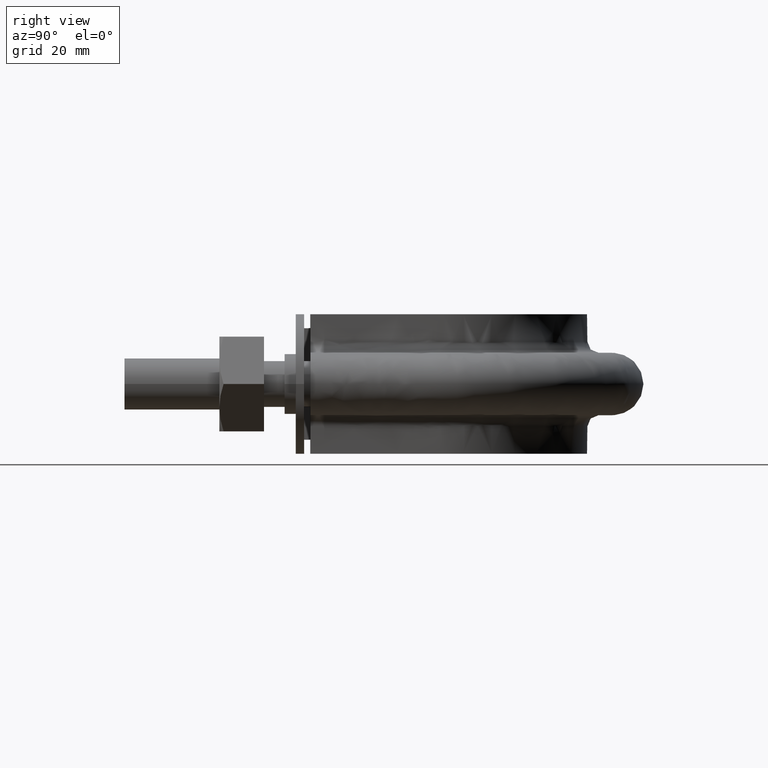
[diagram: clean part render]
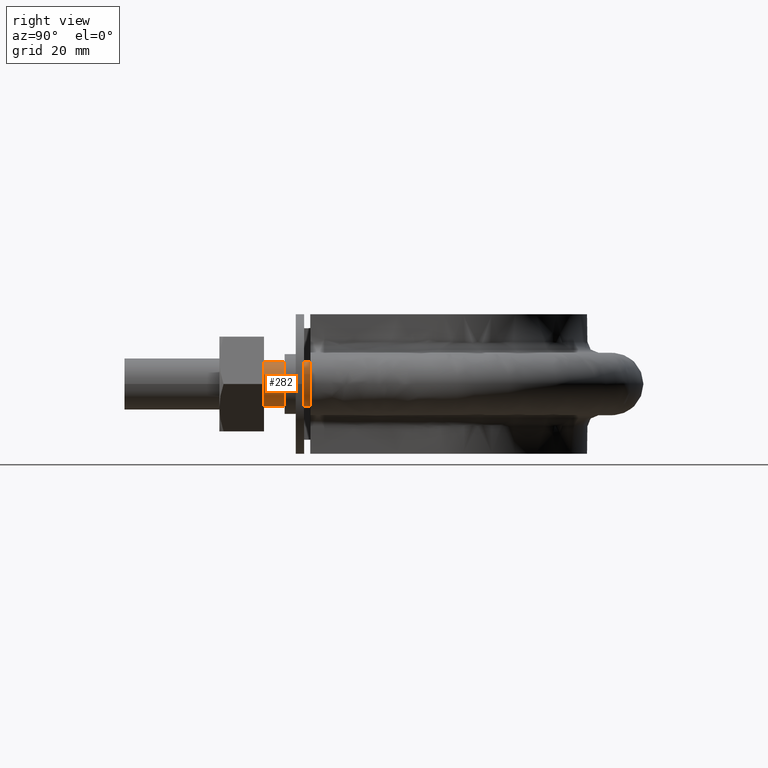
[diagram: same view with one face highlighted and labeled with its STEP entity id]
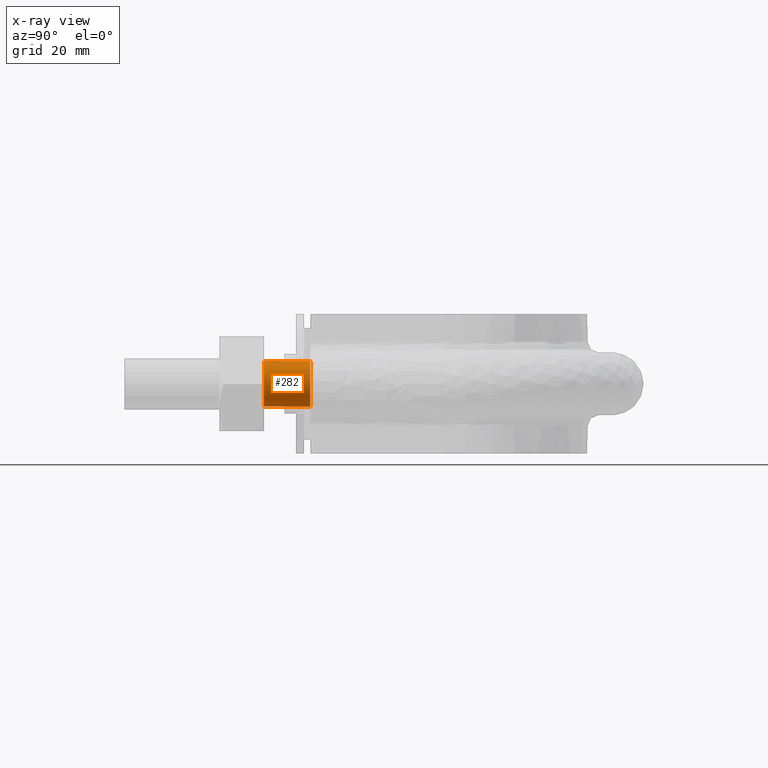
[diagram: x-ray of the same camera — body ghosted, the highlighted face saturated]
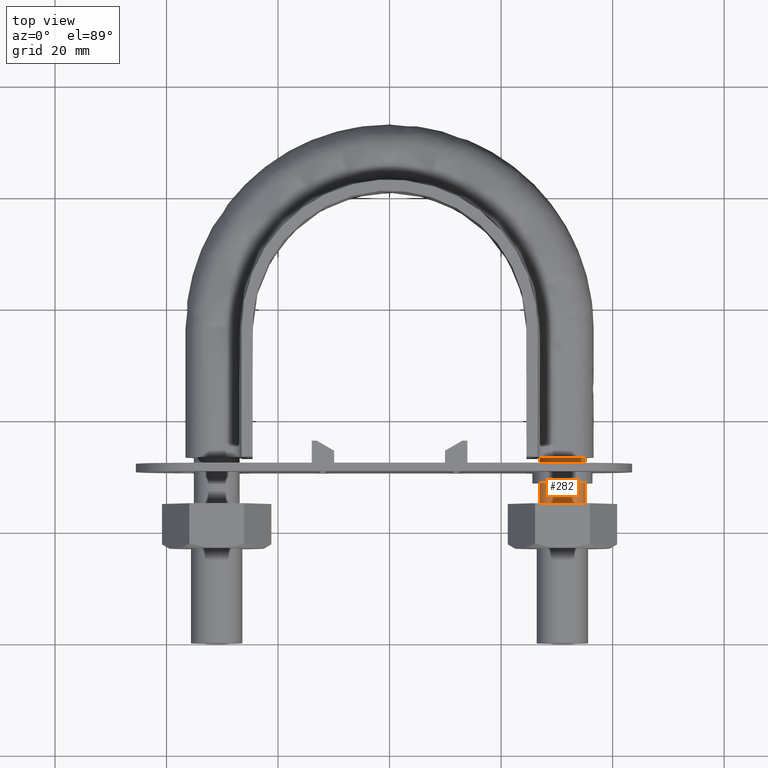
[diagram: same view with one face highlighted and labeled with its STEP entity id]
A machine part, right view. The second image highlights one B-rep face of the part: STEP entity #282.
The next image is the same camera in x-ray: the body ghosted, the highlighted face saturated — about 0% of this face is hidden behind the body in this view.
A second angle (top view) of the same face is appended — the face is thin or edge-on in the first view.
In plain terms, the highlighted cylindrical surface (bore or boss wall) has radius 4.1 mm, axis along (-0, -1, -0).
Its self-contained STEP definition (entity closure, byte-faithful):
#282 = ADVANCED_FACE( '', ( #417, #418 ), #419, .T. );
#417 = FACE_OUTER_BOUND( '', #1499, .T. );
#418 = FACE_OUTER_BOUND( '', #1500, .T. );
#419 = CYLINDRICAL_SURFACE( '', #1501, 4.10000000000000 );
#1499 = EDGE_LOOP( '', ( #1833 ) );
#1500 = EDGE_LOOP( '', ( #1834, #1835, #1836, #1837, #1838, #1839, #1840 ) );
#1501 = AXIS2_PLACEMENT_3D( '', #1841, #1842, #1843 );
#1833 = ORIENTED_EDGE( '', *, *, #2584, .T. );
#1834 = ORIENTED_EDGE( '', *, *, #2567, .T. );
#1835 = ORIENTED_EDGE( '', *, *, #2585, .T. );
#1836 = ORIENTED_EDGE( '', *, *, #2586, .T. );
#1837 = ORIENTED_EDGE( '', *, *, #2587, .T. );
#1838 = ORIENTED_EDGE( '', *, *, #2588, .T. );
#1839 = ORIENTED_EDGE( '', *, *, #2589, .T. );
#1840 = ORIENTED_EDGE( '', *, *, #2583, .T. );
#1841 = CARTESIAN_POINT( '', ( 31.0000000000000, 33.3000000000000, 1.03938464280674E-014 ) );
#1842 = DIRECTION( '', ( -2.44921270764475E-016, -1.00000000000000, -3.06151588455594E-016 ) );
#1843 = DIRECTION( '', ( 1.00000000000000, -2.44921270764475E-016, -3.74915180455534E-032 ) );
#2567 = EDGE_CURVE( '', #2825, #2826, #2827, .T. );
#2583 = EDGE_CURVE( '', #2835, #2825, #2849, .T. );
#2584 = EDGE_CURVE( '', #2850, #2850, #2851, .T. );
#2585 = EDGE_CURVE( '', #2826, #2832, #2852, .T. );
#2586 = EDGE_CURVE( '', #2832, #2831, #2853, .T. );
#2587 = EDGE_CURVE( '', #2831, #2839, #2854, .T. );
#2588 = EDGE_CURVE( '', #2839, #2837, #2855, .T. );
#2589 = EDGE_CURVE( '', #2837, #2835, #2856, .T. );
#2825 = VERTEX_POINT( '', #3421 );
#2826 = VERTEX_POINT( '', #3422 );
#2827 = CIRCLE( '', #3423, 4.10000000000000 );
#2831 = VERTEX_POINT( '', #3430 );
#2832 = VERTEX_POINT( '', #3431 );
#2835 = VERTEX_POINT( '', #3440 );
#2837 = VERTEX_POINT( '', #3445 );
#2839 = VERTEX_POINT( '', #3450 );
#2849 = CIRCLE( '', #3487, 4.10000000000000 );
#2850 = VERTEX_POINT( '', #3488 );
#2851 = CIRCLE( '', #3489, 4.10000000000000 );
#2852 = CIRCLE( '', #3490, 4.10000000000000 );
#2853 = CIRCLE( '', #3491, 4.10000000000000 );
#2854 = CIRCLE( '', #3492, 4.10000000000000 );
#2855 = CIRCLE( '', #3493, 4.10000000000000 );
#2856 = CIRCLE( '', #3494, 4.10000000000000 );
#3421 = CARTESIAN_POINT( '', ( 34.6939723584001, 33.3000000000000, 1.77892333038165 ) );
#3422 = CARTESIAN_POINT( '', ( 31.9123358292210, 33.3000000000000, 3.99720443994545 ) );
#3423 = AXIS2_PLACEMENT_3D( '', #4079, #4080, #4081 );
#3430 = CARTESIAN_POINT( '', ( 26.9000000000000, 33.3000000000000, -2.95212466993632E-013 ) );
#3431 = CARTESIAN_POINT( '', ( 28.4436918123793, 33.3000000000000, 3.20550907811897 ) );
#3440 = CARTESIAN_POINT( '', ( 34.6939723583997, 33.3000000000000, -1.77892333038239 ) );
#3445 = CARTESIAN_POINT( '', ( 31.9123358292213, 33.3000000000000, -3.99720443994539 ) );
#3450 = CARTESIAN_POINT( '', ( 28.4436918123816, 33.3000000000000, -3.20550907812087 ) );
#3487 = AXIS2_PLACEMENT_3D( '', #4085, #4086, #4087 );
#3488 = CARTESIAN_POINT( '', ( 31.0000000000000, 25.0000000000000, 4.10000000000001 ) );
#3489 = AXIS2_PLACEMENT_3D( '', #4088, #4089, #4090 );
#3490 = AXIS2_PLACEMENT_3D( '', #4091, #4092, #4093 );
#3491 = AXIS2_PLACEMENT_3D( '', #4094, #4095, #4096 );
#3492 = AXIS2_PLACEMENT_3D( '', #4097, #4098, #4099 );
#3493 = AXIS2_PLACEMENT_3D( '', #4100, #4101, #4102 );
#3494 = AXIS2_PLACEMENT_3D( '', #4103, #4104, #4105 );
#4079 = CARTESIAN_POINT( '', ( 31.0000000000000, 33.3000000000000, 1.03938464280674E-014 ) );
#4080 = DIRECTION( '', ( -2.44921270764475E-016, -1.00000000000000, -3.06151588455594E-016 ) );
#4081 = DIRECTION( '', ( 1.00000000000000, -2.44921270764475E-016, -3.16197804102265E-032 ) );
#4085 = CARTESIAN_POINT( '', ( 31.0000000000000, 33.3000000000000, 1.03938464280674E-014 ) );
#4086 = DIRECTION( '', ( -2.44921270764475E-016, -1.00000000000000, -3.06151588455594E-016 ) );
#4087 = DIRECTION( '', ( 1.00000000000000, -2.44921270764475E-016, -3.16197804102265E-032 ) );
#4088 = CARTESIAN_POINT( '', ( 31.0000000000000, 25.0000000000000, 7.85278824388599E-015 ) );
#4089 = DIRECTION( '', ( 2.44921270764475E-016, 1.00000000000000, 3.06151588455594E-016 ) );
#4090 = DIRECTION( '', ( -3.74915180455534E-032, -3.06151588455594E-016, 1.00000000000000 ) );
#4091 = CARTESIAN_POINT( '', ( 31.0000000000000, 33.3000000000000, 1.03938464280674E-014 ) );
#4092 = DIRECTION( '', ( -2.44921270764475E-016, -1.00000000000000, -3.06151588455594E-016 ) );
#4093 = DIRECTION( '', ( 1.00000000000000, -2.44921270764475E-016, -3.16197804102265E-032 ) );
#4094 = CARTESIAN_POINT( '', ( 31.0000000000000, 33.3000000000000, 1.03938464280674E-014 ) );
#4095 = DIRECTION( '', ( -2.44921270764475E-016, -1.00000000000000, -3.06151588455594E-016 ) );
#4096 = DIRECTION( '', ( 1.00000000000000, -2.44921270764475E-016, -3.16197804102265E-032 ) );
#4097 = CARTESIAN_POINT( '', ( 31.0000000000000, 33.3000000000000, 1.03938464280674E-014 ) );
#4098 = DIRECTION( '', ( -2.44921270764475E-016, -1.00000000000000, -3.06151588455594E-016 ) );
#4099 = DIRECTION( '', ( 1.00000000000000, -2.44921270764475E-016, -3.16197804102265E-032 ) );
#4100 = CARTESIAN_POINT( '', ( 31.0000000000000, 33.3000000000000, 1.03938464280674E-014 ) );
#4101 = DIRECTION( '', ( -2.44921270764475E-016, -1.00000000000000, -3.06151588455594E-016 ) );
#4102 = DIRECTION( '', ( 1.00000000000000, -2.44921270764475E-016, -3.16197804102265E-032 ) );
#4103 = CARTESIAN_POINT( '', ( 31.0000000000000, 33.3000000000000, 1.03938464280674E-014 ) );
#4104 = DIRECTION( '', ( -2.44921270764475E-016, -1.00000000000000, -3.06151588455594E-016 ) );
#4105 = DIRECTION( '', ( 1.00000000000000, -2.44921270764475E-016, -3.16197804102265E-032 ) );